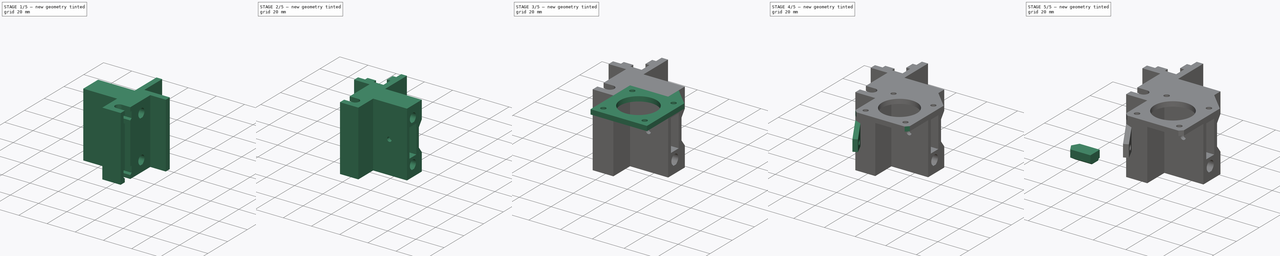
[diagram: build sequence overview — one tinted view per stage of 5, left to right]
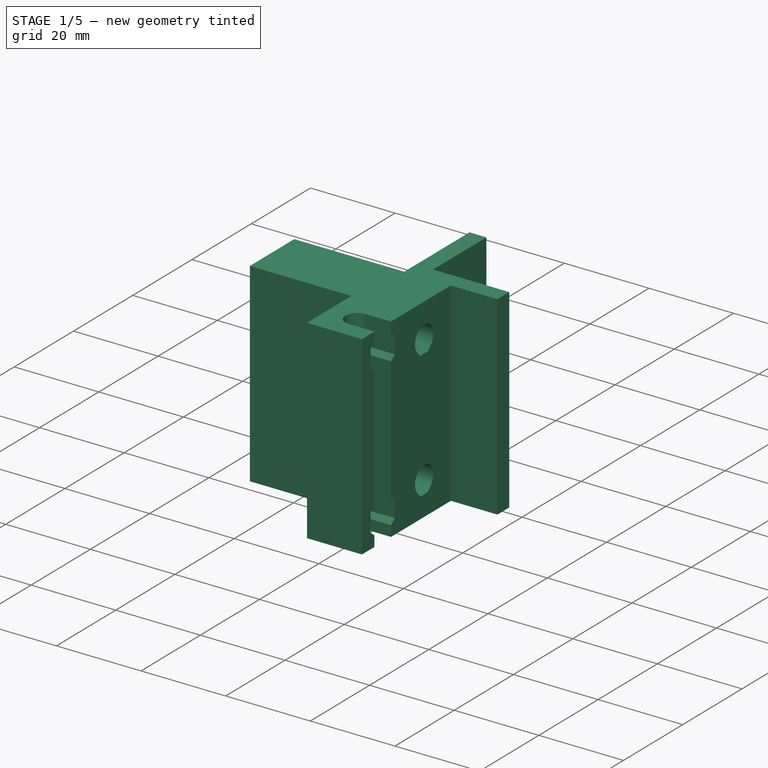
[diagram: stage 1 of 5 — iso view after this stage's code; geometry added in this stage tinted green]
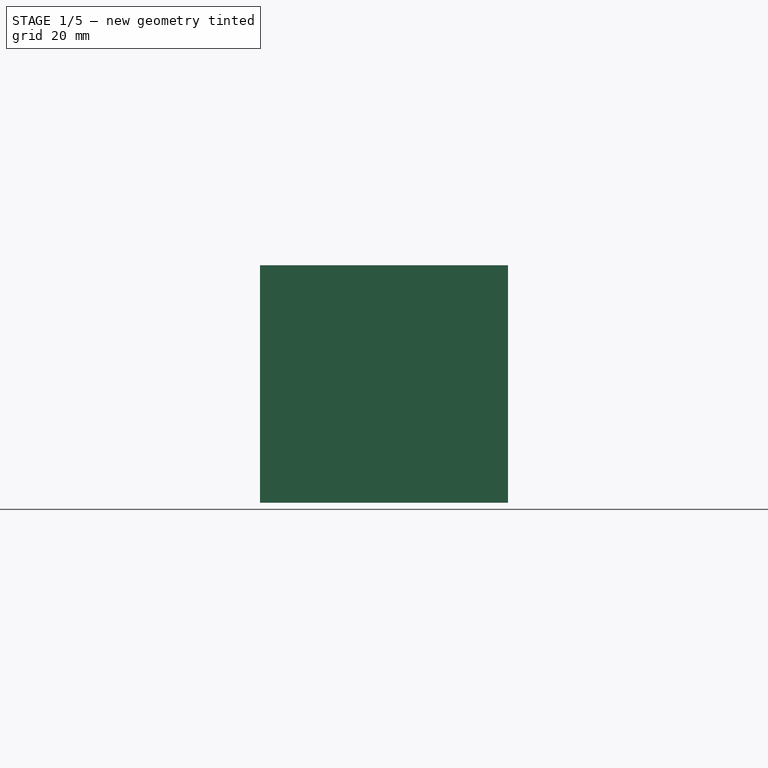
[diagram: stage 1 of 5 — front view after this stage's code; geometry added in this stage tinted green]
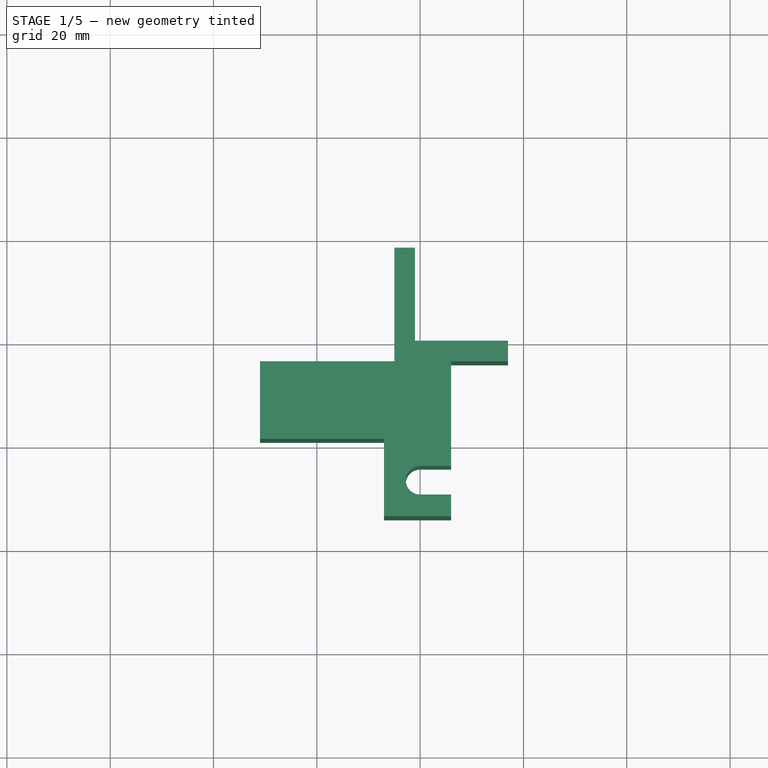
[diagram: stage 1 of 5 — top view after this stage's code; geometry added in this stage tinted green]
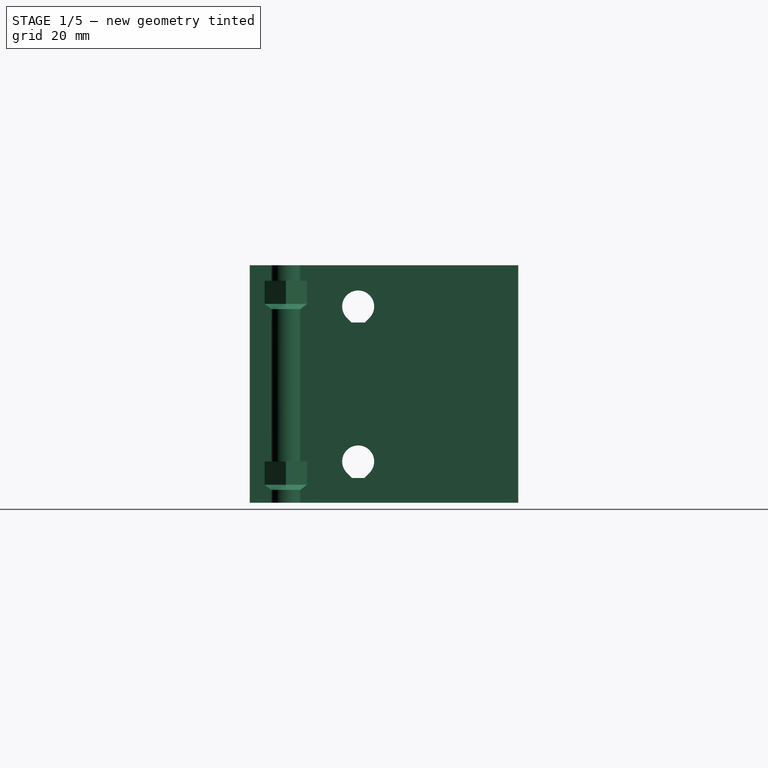
[diagram: stage 1 of 5 — right view after this stage's code; geometry added in this stage tinted green]
FCSTD DOCUMENT  (FreeCAD 0.14R3692 (Git))
Label: x-idler
License: CC-BY 3.0
LicenseURL: http://creativecommons.org/licenses/by/3.0/
objects: Sketcher::SketchObject×15, Part::Feature×13, PartDesign::Pocket×8, PartDesign::Pad×7, Part::Cut×4, Part::MultiFuse×2, Part::Loft×1, Part::Mirroring×1, Part::Prism×1, App::DocumentObjectGroup×1, Part::Chamfer×1
note: 68 computed .brp shape members not serialized (recipe doc carries the construction recipe); baked Part::Feature solids carry a one-line shape summary decoded from their .brp

FEATURE [Sketcher::SketchObject] Sketch  label="body-sketch"
  sketch-geometry (12):
    g0: LineSegment StartX=-21 StartY=18 StartZ=0 EndX=-21 EndY=0 EndZ=0
    g1: LineSegment StartX=-21 StartY=0 StartZ=0 EndX=-3 EndY=0 EndZ=0
    g2: LineSegment StartX=-3 StartY=0 StartZ=0 EndX=-3 EndY=-4 EndZ=0
    g3: LineSegment StartX=-3 StartY=-4 StartZ=0 EndX=-14 EndY=-4 EndZ=0
    g4: LineSegment StartX=-14 StartY=-4 StartZ=0 EndX=-14 EndY=-34 EndZ=0
    g5: LineSegment StartX=-14 StartY=-34 StartZ=0 EndX=-27 EndY=-34 EndZ=0
    g6: LineSegment StartX=-27 StartY=-34 StartZ=0 EndX=-27 EndY=-19 EndZ=0
    g7: LineSegment StartX=-27 StartY=-19 StartZ=0 EndX=-51 EndY=-19 EndZ=0
    g8: LineSegment StartX=-51 StartY=-19 StartZ=0 EndX=-51 EndY=-4 EndZ=0
    g9: LineSegment StartX=-51 StartY=-4 StartZ=0 EndX=-25 EndY=-4 EndZ=0
    g10: LineSegment StartX=-25 StartY=-4 StartZ=0 EndX=-25 EndY=18 EndZ=0
    g11: LineSegment StartX=-25 StartY=18 StartZ=0 EndX=-21 EndY=18 EndZ=0
  constraints (36):
    c: Coincident(g0,g1)
    c: Coincident(g1,g2)
    c: Coincident(g2,g3)
    c: Coincident(g3,g4)
    c: Coincident(g4,g5)
    c: Coincident(g5,g6)
    c: Coincident(g6,g7)
    c: Coincident(g7,g8)
    c: Coincident(g8,g9)
    c: Coincident(g9,g10)
    c: Coincident(g10,g11)
    c: Coincident(g11,g0)
    c: Vertical(g8)
    c: Vertical(g4)
    c: Vertical(g6)
    c: Vertical(g10)
    c: Vertical(g0)
    c: Vertical(g2)
    c: Horizontal(g5)
    c: Horizontal(g7)
    c: Horizontal(g9)
    c: Horizontal(g1)
    c: Horizontal(g3)
    c: Horizontal(g11)
    c: DistanceX(g1) = 18
    c: DistanceY(g0) = -18
    c: DistanceX(g11) = 4
    c: DistanceY(g2) = -4
    c: PointOnObject(g0,g-1)
    c: DistanceX(g-1,g0) = -21
    c: DistanceY(g4) = -30
    c: DistanceX(g3) = -11
    c: DistanceY(g6) = 15
    c: DistanceX(g7) = -24
    c: DistanceY(g8) = 15
    c: DistanceX(g5) = -13
FEATURE [PartDesign::Pad] Pad  label="body-pad"
  Length = 46
  Length2 = 100
  Sketch = -> Sketch
  Type = 0
FEATURE [Sketcher::SketchObject] Sketch001  label="smooth-rod-holes-sketch"
  Placement = pos=(-14,0,0) rot=(0.57735,0.57735,0.57735;2.0944rad)
  Support = -> Pad [Face5]
  sketch-geometry (8):
    g0: ArcOfCircle CenterX=-13 CenterY=38 CenterZ=0 NormalX=0 NormalY=0 NormalZ=1 Radius=3.1 StartAngle=5.49778 EndAngle=10.2102
    g1: LineSegment StartX=-10.808 StartY=35.808 StartZ=0 EndX=-11.7159 EndY=34.9 EndZ=0
    g2: LineSegment StartX=-11.7159 StartY=34.9 StartZ=0 EndX=-14.2841 EndY=34.9 EndZ=0
    g3: LineSegment StartX=-14.2841 StartY=34.9 StartZ=0 EndX=-15.192 EndY=35.808 EndZ=0
    g4: ArcOfCircle CenterX=-13 CenterY=8 CenterZ=0 NormalX=0 NormalY=0 NormalZ=1 Radius=3.1 StartAngle=5.49779 EndAngle=10.2102
    g5: LineSegment StartX=-10.808 StartY=5.80797 StartZ=0 EndX=-11.8159 EndY=4.8 EndZ=0
    g6: LineSegment StartX=-11.8159 StartY=4.8 StartZ=0 EndX=-14.184 EndY=4.8 EndZ=0
    g7: LineSegment StartX=-14.184 StartY=4.8 StartZ=0 EndX=-15.192 EndY=5.80796 EndZ=0
  constraints (26):
    c: Radius(g0) = 3.1
    c: DistanceY(g-1,g0) = 38
    c: DistanceX(g-1,g0) = -13
    c: Coincident(g1,g2)
    c: Coincident(g2,g3)
    c: Coincident(g0,g1)
    c: Coincident(g3,g0)
    c: Equal(g1,g3)
    c: Coincident(g5,g6)
    c: Coincident(g6,g7)
    c: Coincident(g4,g5)
    c: Coincident(g7,g4)
    c: Tangent(g5,g4)
    c: Tangent(g7,g4)
    c: Equal(g7,g5)
    c: Angle(g5,g7) = 1.5708
    c: Radius(g4) = 3.1
    c: DistanceY(g-1,g4) = 8
    c: DistanceX(g-1,g4) = -13
    c: Tangent(g3,g0)
    c: Tangent(g1,g0)
    c: Horizontal(g2)
    c: Angle(g1,g3) = 1.5708
    c: DistanceY(g2,g0) = 3.1
    c: DistanceY(g6,g4) = 3.2
    c: Horizontal(g6)
FEATURE [PartDesign::Pocket] Pocket  label="smooth-rod-holes-pocket"
  Length = 27
  Sketch = -> Sketch001
  Type = 1
FEATURE [Sketcher::SketchObject] Sketch002  label="threaded-rod-channel-sketch"
  Placement = pos=(0,0,46) rot=(0,0,1;0rad)
  Support = -> Pocket [Face5]
  sketch-geometry (4):
    g0: ArcOfCircle CenterX=-20 CenterY=-27 CenterZ=0 NormalX=0 NormalY=0 NormalZ=1 Radius=2.8 StartAngle=1.57079 EndAngle=4.71239
    g1: ArcOfCircle CenterX=-13 CenterY=-27 CenterZ=0 NormalX=0 NormalY=0 NormalZ=1 Radius=2.8 StartAngle=4.71239 EndAngle=7.85398
    g2: LineSegment StartX=-20 StartY=-29.8 StartZ=0 EndX=-13 EndY=-29.8 EndZ=0
    g3: LineSegment StartX=-20 StartY=-24.2 StartZ=0 EndX=-13 EndY=-24.2 EndZ=0
  constraints (14):
    c: Tangent(g0,g2)
    c: Tangent(g0,g3)
    c: Tangent(g1,g2)
    c: Tangent(g1,g3)
    c: Coincident(g0,g3)
    c: Coincident(g0,g2)
    c: Coincident(g2,g1)
    c: Coincident(g3,g1)
    c: Horizontal(g2)
    c: Equal(g0,g1)
    c: Radius(g0) = 2.8
    c: DistanceX(g2) = 7
    c: DistanceY(g-1,g0) = -27
    c: DistanceX(g-1,g0) = -20
FEATURE [PartDesign::Pocket] Pocket001  label="threaded-rod-channel-pocket"
  Length = 46
  Sketch = -> Sketch002
  Type = 0
FEATURE [Part::Feature] Fusion001  label="threaded-rod-nut-bottom"
  Placement = pos=(0,0,3.5) rot=(0,0,1;0rad)
  shape: bbox 14.73 x 8.2 x 5.5 mm, 16 faces (baked)
FEATURE [Part::Feature] Fusion002  label="threaded-rod-nut-top"
  Placement = pos=(0,0,38.5) rot=(0,0,1;0rad)
  shape: bbox 14.73 x 8.2 x 5.5 mm, 16 faces (baked)
FEATURE [Part::Cut] Cut  label="threaded-rod-nut-bottom-cut"
  Base = -> Pocket001
  Tool = -> Fusion001
FEATURE [Part::Cut] Cut001  label="threaded-rod-nut-top-cut"
  Base = -> Cut
  Tool = -> Fusion002
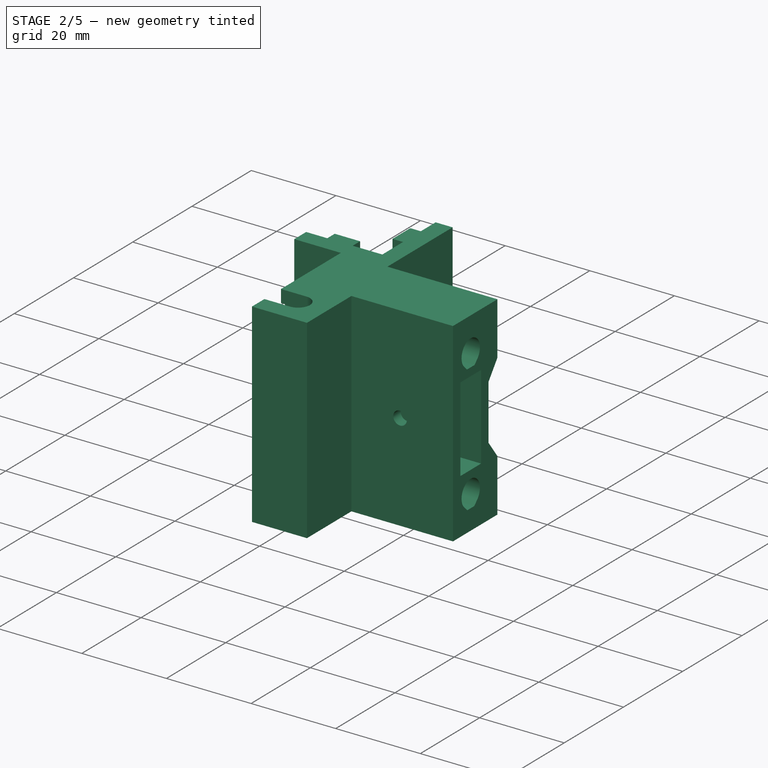
[diagram: stage 2 of 5 — iso view after this stage's code; geometry added in this stage tinted green]
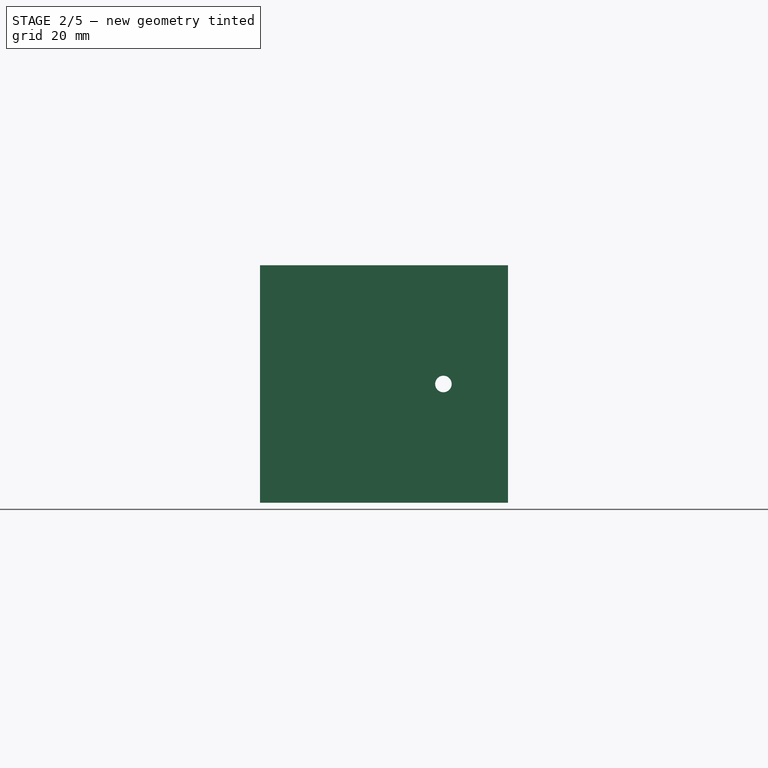
[diagram: stage 2 of 5 — front view after this stage's code; geometry added in this stage tinted green]
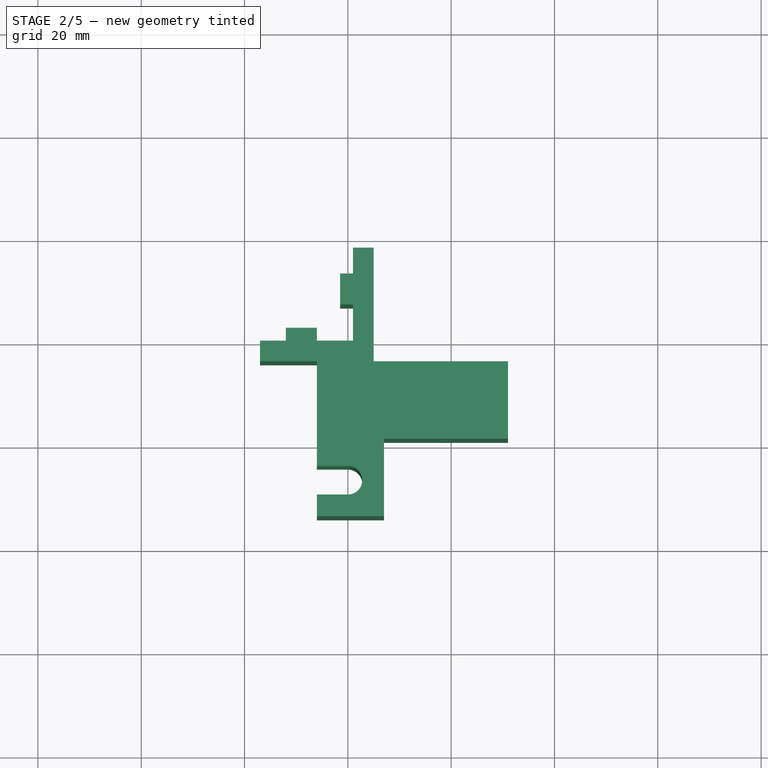
[diagram: stage 2 of 5 — top view after this stage's code; geometry added in this stage tinted green]
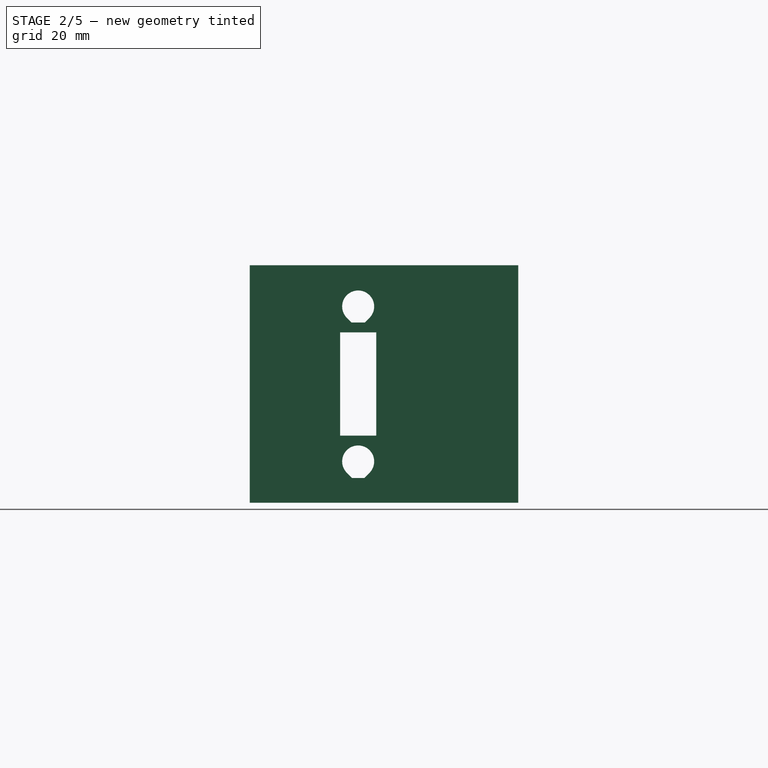
[diagram: stage 2 of 5 — right view after this stage's code; geometry added in this stage tinted green]
FEATURE [Sketcher::SketchObject] Sketch005  label="slot-guides-sketch"
  Placement = pos=(0,0,46) rot=(0,0,1;0rad)
  Support = -> Cut001 [Face5]
  sketch-geometry (8):
    g0: LineSegment StartX=-14 StartY=2.5 StartZ=0 EndX=-8 EndY=2.5 EndZ=0
    g1: LineSegment StartX=-8 StartY=2.5 StartZ=0 EndX=-8 EndY=0 EndZ=0
    g2: LineSegment StartX=-8 StartY=0 StartZ=0 EndX=-14 EndY=0 EndZ=0
    g3: LineSegment StartX=-14 StartY=0 StartZ=0 EndX=-14 EndY=2.5 EndZ=0
    g4: LineSegment StartX=-21 StartY=13 StartZ=0 EndX=-18.5 EndY=13 EndZ=0
    g5: LineSegment StartX=-18.5 StartY=13 StartZ=0 EndX=-18.5 EndY=7 EndZ=0
    g6: LineSegment StartX=-18.5 StartY=7 StartZ=0 EndX=-21 EndY=7 EndZ=0
    g7: LineSegment StartX=-21 StartY=7 StartZ=0 EndX=-21 EndY=13 EndZ=0
  constraints (24):
    c: Coincident(g0,g1)
    c: Coincident(g1,g2)
    c: Coincident(g2,g3)
    c: Coincident(g3,g0)
    c: Horizontal(g0)
    c: Horizontal(g2)
    c: Vertical(g1)
    c: Vertical(g3)
    c: Coincident(g4,g5)
    c: Coincident(g5,g6)
    c: Coincident(g6,g7)
    c: Coincident(g7,g4)
    c: Horizontal(g4)
    c: Horizontal(g6)
    c: Vertical(g5)
    c: Vertical(g7)
    c: DistanceX(g0) = 6
    c: DistanceY(g1) = -2.5
    c: Equal(g0,g5)
    c: Equal(g1,g4)
    c: DistanceX(g-1,g1) = -8
    c: PointOnObject(g1,g-1)
    c: DistanceX(g-1,g6) = -21
    c: DistanceY(g-1,g6) = 7
FEATURE [PartDesign::Pad] Pad003  label="slot-guides-pad"
  Length = 46
  Length2 = 100
  Reversed = true
  Sketch = -> Sketch005
  Type = 0
FEATURE [Part::Mirroring] Part__Mirroring  label="slot-guides (mirror)"
  Base = (3.8147e-06,-8,23)
  Normal = (1,0,5.9605e-08)
  Source = -> Pad003
FEATURE [Sketcher::SketchObject] Sketch006  label="belt-channel-sketch"
  Placement = pos=(51,0,6.07968e-06) rot=(0.57735,0.57735,0.57735;2.0944rad)
  Support = -> Part__Mirroring [Face9]
  sketch-geometry (4):
    g0: LineSegment StartX=-16.5 StartY=33 StartZ=0 EndX=-9.5 EndY=33 EndZ=0
    g1: LineSegment StartX=-9.5 StartY=33 StartZ=0 EndX=-9.5 EndY=13 EndZ=0
    g2: LineSegment StartX=-9.5 StartY=13 StartZ=0 EndX=-16.5 EndY=13 EndZ=0
    g3: LineSegment StartX=-16.5 StartY=13 StartZ=0 EndX=-16.5 EndY=33 EndZ=0
  constraints (12):
    c: Coincident(g0,g1)
    c: Coincident(g1,g2)
    c: Coincident(g2,g3)
    c: Coincident(g3,g0)
    c: Horizontal(g0)
    c: Horizontal(g2)
    c: Vertical(g1)
    c: Vertical(g3)
    c: DistanceX(g2) = -7
    c: DistanceY(g1) = -20
    c: DistanceX(g-1,g1) = -9.5
    c: DistanceY(g-1,g1) = 13
FEATURE [PartDesign::Pocket] Pocket002  label="belt-channel-pocket"
  Length = 38
  Sketch = -> Sketch006
  Type = 0
FEATURE [Sketcher::SketchObject] Sketch007  label="body-thin-cutout-sketch"
  Placement = pos=(51,0,6.07968e-06) rot=(0.57735,0.57735,0.57735;2.0944rad)
  Support = -> Pocket002 [Face9]
  sketch-geometry (4):
    g0: LineSegment StartX=-4 StartY=33.5 StartZ=0 EndX=-7 EndY=29.5 EndZ=0
    g1: LineSegment StartX=-7 StartY=29.5 StartZ=0 EndX=-7 EndY=16.5 EndZ=0
    g2: LineSegment StartX=-7 StartY=16.5 StartZ=0 EndX=-4 EndY=12.5 EndZ=0
    g3: LineSegment StartX=-4 StartY=12.5 StartZ=0 EndX=-4 EndY=33.5 EndZ=0
  constraints (12):
    c: Coincident(g0,g1)
    c: Coincident(g1,g2)
    c: Coincident(g2,g3)
    c: Coincident(g3,g0)
    c: Vertical(g3)
    c: Vertical(g1)
    c: DistanceY(g1) = -13
    c: DistanceX(g-1,g1) = -7
    c: DistanceY(g-1,g2) = 12.5
    c: DistanceX(g-1,g2) = -4
    c: Equal(g0,g2)
    c: DistanceY(g-1,g1) = 16.5
FEATURE [PartDesign::Pocket] Pocket003  label="body-thin-cutout-pocket"
  Length = 26
  Sketch = -> Sketch007
  Type = 0
FEATURE [Sketcher::SketchObject] Sketch008  label="bearing-screw-hole-sketch"
  Placement = pos=(0,-7,0) rot=(0,0.707107,0.707107;3.14159rad)
  Support = -> Pocket003 [Face33]
  sketch-geometry (1):
    g0: Circle CenterX=-38.5 CenterY=23 CenterZ=0 NormalX=0 NormalY=0 NormalZ=1 Radius=1.6
  constraints (3):
    c: Radius(g0) = 1.6
    c: DistanceX(g-1,g0) = -38.5
    c: DistanceY(g-1,g0) = 23
FEATURE [PartDesign::Pocket] Pocket004  label="bearing-screw-hole-pocket"
  Length = 5
  Sketch = -> Sketch008
  Type = 1
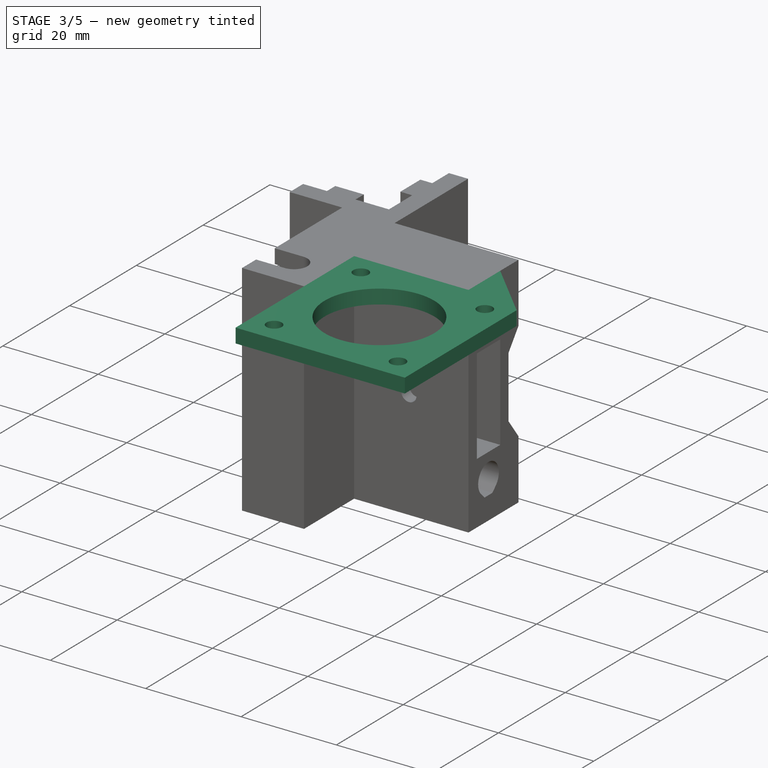
[diagram: stage 3 of 5 — iso view after this stage's code; geometry added in this stage tinted green]
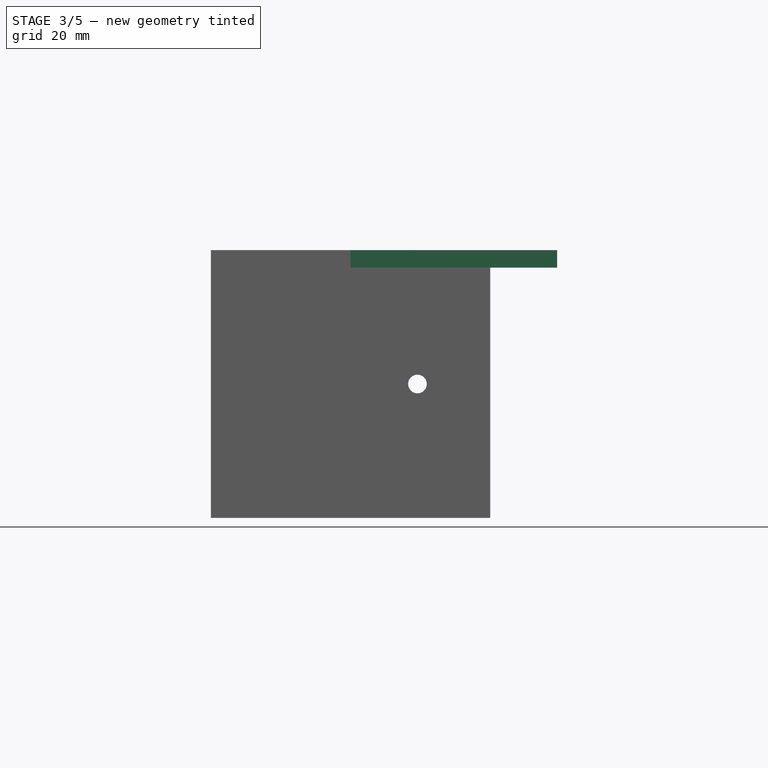
[diagram: stage 3 of 5 — front view after this stage's code; geometry added in this stage tinted green]
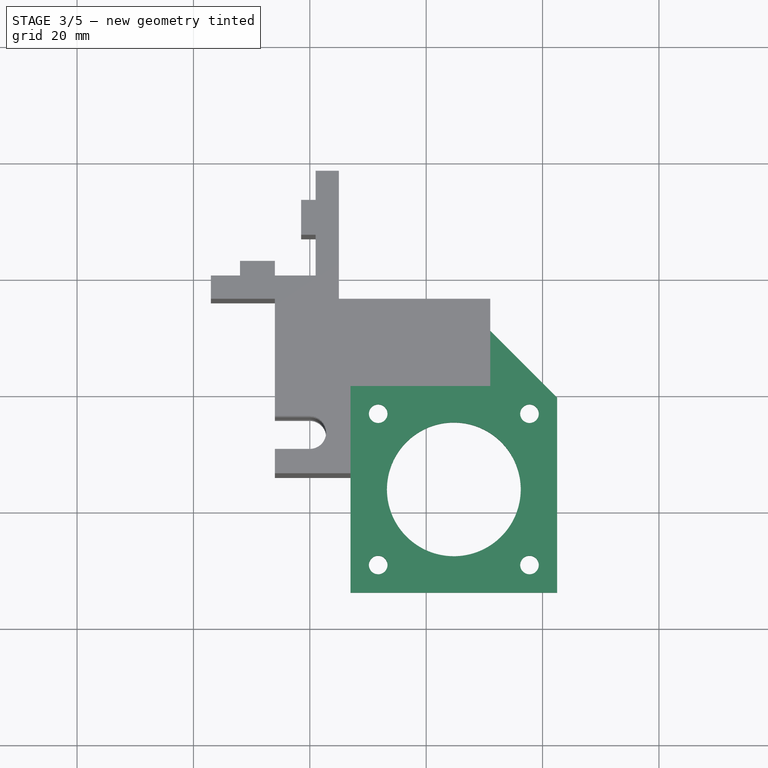
[diagram: stage 3 of 5 — top view after this stage's code; geometry added in this stage tinted green]
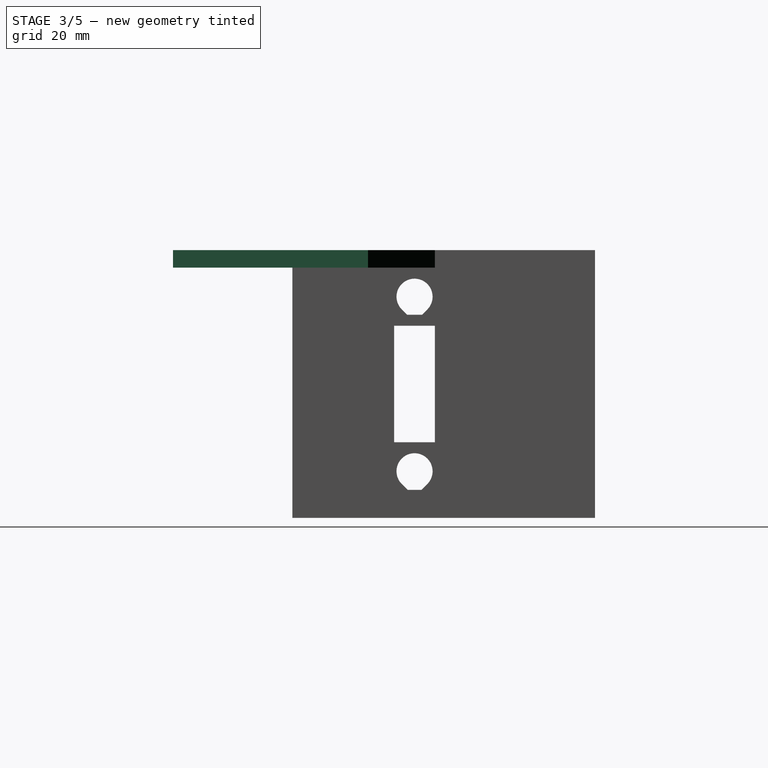
[diagram: stage 3 of 5 — right view after this stage's code; geometry added in this stage tinted green]
FEATURE [Part::Feature] Pad004001  label="smooth-rod-nut-top"
  Placement = pos=(38.5,-13,38) rot=(-1,0,0;1.5708rad)
  shape: bbox 7 x 9.5 x 6.062 mm, 10 faces (baked)
FEATURE [Part::Feature] Pad004001001  label="smooth-rod-nut-bottom"
  Placement = pos=(38.5,-13,8) rot=(-1,0,0;1.5708rad)
  shape: bbox 7 x 9.5 x 6.062 mm, 10 faces (baked)
FEATURE [Part::Cut] Cut002  label="smooth-rod-nut-top-cut"
  Base = -> Pocket004
  Tool = -> Pad004001
FEATURE [Part::Cut] Cut003  label="smooth-rod-nut-bottom-cut"
  Base = -> Cut002
  Tool = -> Pad004001001
FEATURE [Sketcher::SketchObject] Sketch010  label="motor-e-holder-sketch"
  Placement = pos=(-5.48363e-06,0,46) rot=(0,0,1;0rad)
  Support = -> Cut003 [Face5]
  sketch-geometry (5):
    g0: LineSegment StartX=62.5 StartY=-21 StartZ=0 EndX=62.5 EndY=-54.5 EndZ=0
    g1: LineSegment StartX=62.5 StartY=-54.5 StartZ=0 EndX=27 EndY=-54.5 EndZ=0
    g2: LineSegment StartX=27 StartY=-54.5 StartZ=0 EndX=27 EndY=-9 EndZ=0
    g3: LineSegment StartX=62.5 StartY=-21 StartZ=0 EndX=50.5 EndY=-9 EndZ=0
    g4: LineSegment StartX=50.5 StartY=-9 StartZ=0 EndX=27 EndY=-9 EndZ=0
  constraints (15):
    c: Coincident(g0,g1)
    c: Coincident(g1,g2)
    c: Horizontal(g1)
    c: Vertical(g0)
    c: Vertical(g2)
    c: DistanceX(g1) = -35.5
    c: Coincident(g3,g4)
    c: Horizontal(g4)
    c: DistanceX(g-1,g2) = 27
    c: Coincident(g2,g4)
    c: Angle(g4,g3) = 2.35619
    c: DistanceY(g0) = -33.5
    c: DistanceY(g2) = 45.5
    c: DistanceY(g-1,g2) = -9
    c: Coincident(g0,g3)
FEATURE [PartDesign::Pad] Pad004001002  label="motor-e-holder-pad"
  Length = 3
  Length2 = 100
  Reversed = true
  Sketch = -> Sketch010
  Type = 0
FEATURE [Sketcher::SketchObject] Sketch011  label="motor-e-shaft-cutout-sketch"
  Placement = pos=(-5.48363e-06,0,46) rot=(0,0,1;0rad)
  Support = -> Pad004001002 [Face74]
  sketch-geometry (1):
    g0: Circle CenterX=44.75 CenterY=-36.75 CenterZ=0 NormalX=0 NormalY=0 NormalZ=1 Radius=11.5
  constraints (3):
    c: Radius(g0) = 11.5
    c: DistanceY(g-1,g0) = -36.75
    c: DistanceX(g-1,g0) = 44.75
FEATURE [PartDesign::Pocket] Pocket005  label="motor-e-shaft-cutout-pocket"
  Length = 3
  Sketch = -> Sketch011
  Type = 0
FEATURE [Sketcher::SketchObject] Sketch012  label="motor-e-screw-holes-sketch"
  Placement = pos=(-5.48363e-06,0,46) rot=(0,0,1;0rad)
  Support = -> Pocket005 [Face74]
  sketch-geometry (9):
    g0: Circle [constr] CenterX=44.75 CenterY=-36.75 CenterZ=0 NormalX=0 NormalY=0 NormalZ=1 Radius=18.3848
    g1: LineSegment [constr] StartX=31.75 StartY=-23.75 StartZ=0 EndX=57.75 EndY=-23.75 EndZ=0
    g2: LineSegment [constr] StartX=57.75 StartY=-23.75 StartZ=0 EndX=57.75 EndY=-49.75 EndZ=0
    g3: LineSegment [constr] StartX=57.75 StartY=-49.75 StartZ=0 EndX=31.75 EndY=-49.75 EndZ=0
    g4: LineSegment [constr] StartX=31.75 StartY=-49.75 StartZ=0 EndX=31.75 EndY=-23.75 EndZ=0
    g5: Circle CenterX=31.75 CenterY=-23.75 CenterZ=0 NormalX=0 NormalY=0 NormalZ=1 Radius=1.6
    g6: Circle CenterX=57.75 CenterY=-23.75 CenterZ=0 NormalX=0 NormalY=0 NormalZ=1 Radius=1.6
    g7: Circle CenterX=31.75 CenterY=-49.75 CenterZ=0 NormalX=0 NormalY=0 NormalZ=1 Radius=1.6
    g8: Circle CenterX=57.75 CenterY=-49.75 CenterZ=0 NormalX=0 NormalY=0 NormalZ=1 Radius=1.6
  constraints (23):
    c: Coincident(g1,g2)
    c: Coincident(g2,g3)
    c: Coincident(g3,g4)
    c: Coincident(g4,g1)
    c: Horizontal(g1)
    c: Horizontal(g3)
    c: Vertical(g2)
    c: Vertical(g4)
    c: DistanceX(g3) = -26
    c: Equal(g3,g2)
    c: PointOnObject(g1,g0)
    c: PointOnObject(g1,g0)
    c: PointOnObject(g2,g0)
    c: DistanceX(g-1,g0) = 44.75
    c: DistanceY(g-1,g0) = -36.75
    c: Radius(g5) = 1.6
    c: Coincident(g5,g1)
    c: Coincident(g8,g2)
    c: Coincident(g6,g1)
    c: Coincident(g3,g7)
    c: Equal(g6,g5)
    c: Equal(g5,g7)
    c: Equal(g7,g8)
FEATURE [PartDesign::Pocket] Pocket006  label="motor-e-screw-holes-pocket"
  Length = 3
  Sketch = -> Sketch012
  Type = 0
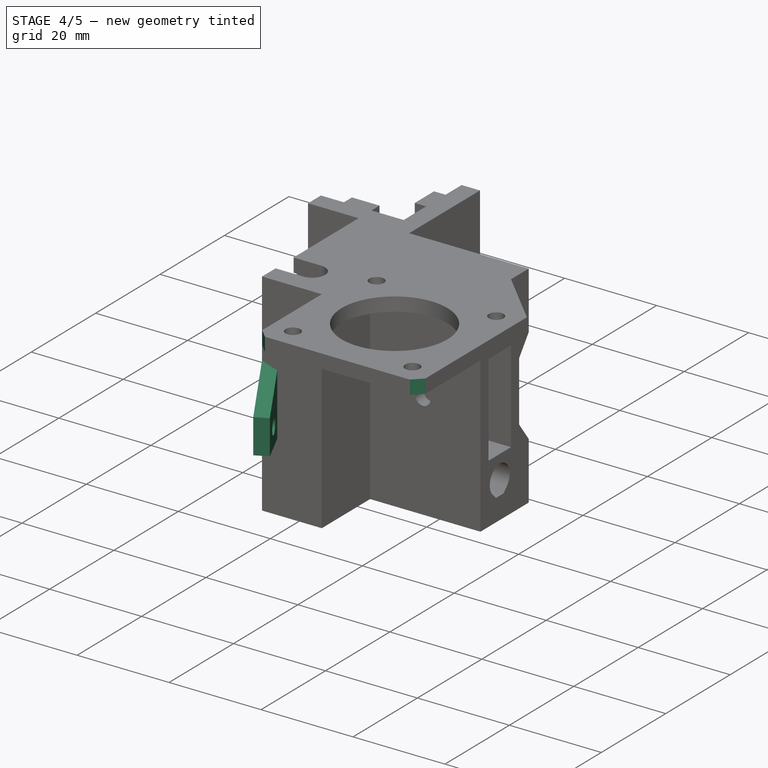
[diagram: stage 4 of 5 — iso view after this stage's code; geometry added in this stage tinted green]
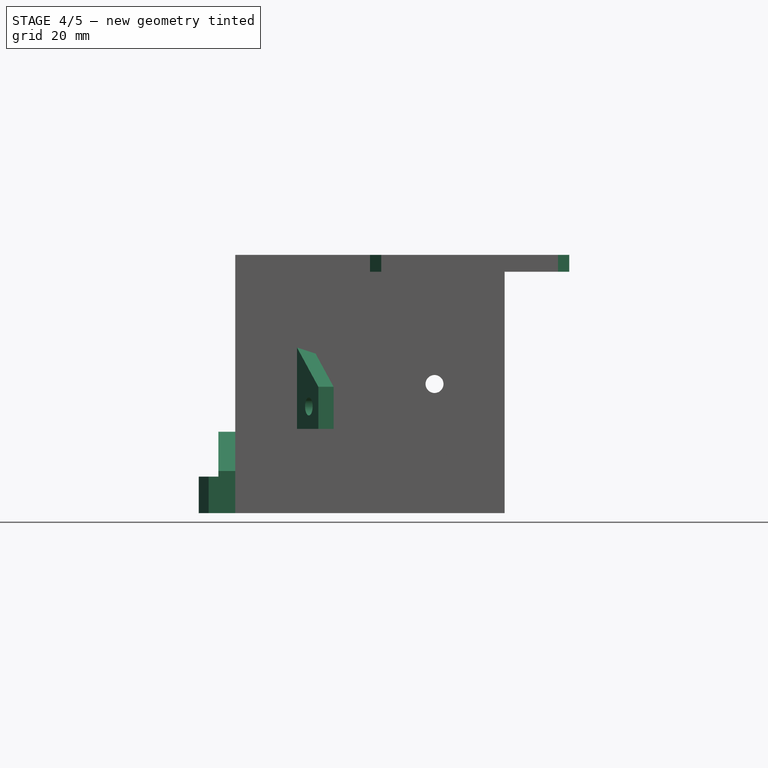
[diagram: stage 4 of 5 — front view after this stage's code; geometry added in this stage tinted green]
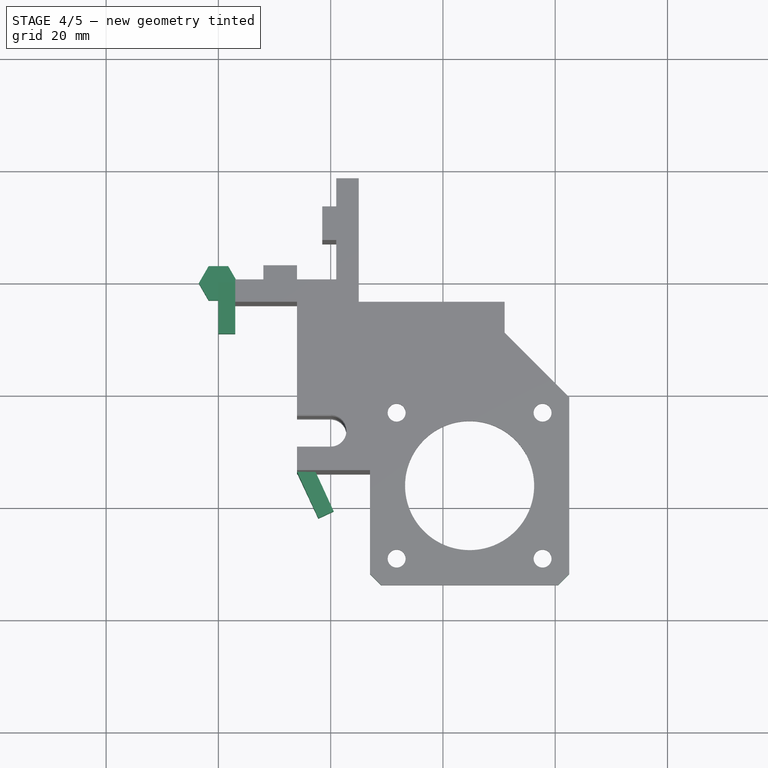
[diagram: stage 4 of 5 — top view after this stage's code; geometry added in this stage tinted green]
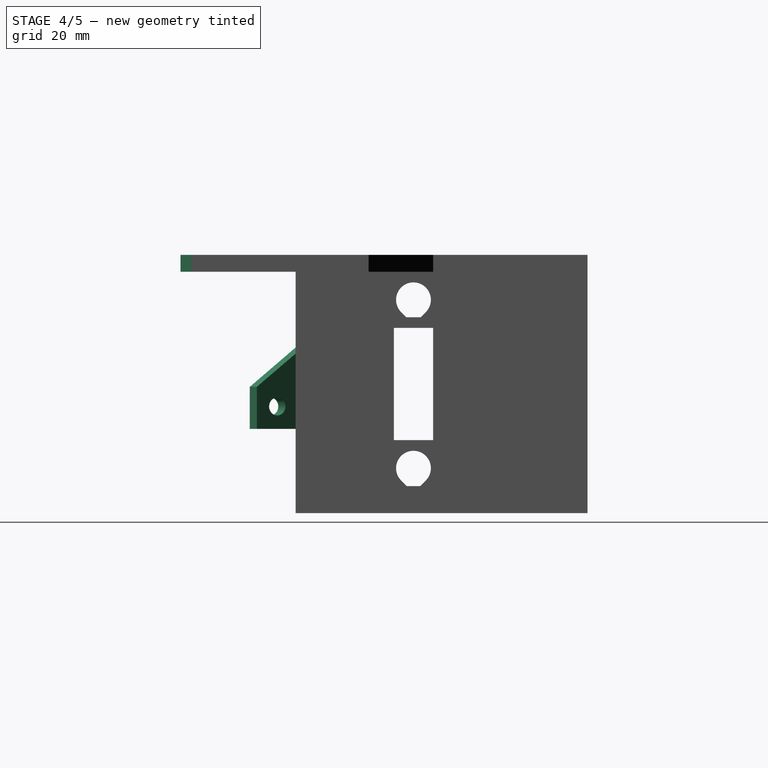
[diagram: stage 4 of 5 — right view after this stage's code; geometry added in this stage tinted green]
FEATURE [Part::Prism] Prism  label="smooth-rod-nut-prism"
  Circumradius = 3.5
  Height = 6.5
  Polygon = 6
FEATURE [Sketcher::SketchObject] Sketch013  label="fan-holder-sketch"
  Placement = pos=(0,0,0) rot=(0.57735,-0.57735,-0.57735;2.0944rad)
  sketch-geometry (4):
    g0: LineSegment StartX=9 StartY=0 StartZ=0 EndX=9 EndY=7.5 EndZ=0
    g1: LineSegment StartX=9 StartY=7.5 StartZ=0 EndX=0 EndY=14.5 EndZ=0
    g2: LineSegment StartX=0 StartY=14.5 StartZ=0 EndX=0 EndY=0 EndZ=0
    g3: LineSegment StartX=0 StartY=0 StartZ=0 EndX=9 EndY=0 EndZ=0
  constraints (11):
    c: Coincident(g0,g1)
    c: Coincident(g1,g2)
    c: Coincident(g2,g3)
    c: Coincident(g3,g0)
    c: Horizontal(g3)
    c: Vertical(g0)
    c: Vertical(g2)
    c: Coincident(g2,g-1)
    c: DistanceX(g3) = 9
    c: DistanceY(g2) = -14.5
    c: DistanceY(g0) = 7.5
FEATURE [PartDesign::Pad] Pad004001003  label="fan-holder-pad"
  Length = 3
  Length2 = 100
  Placement = pos=(0,0,0) rot=(0.57735,-0.57735,-0.57735;2.0944rad)
  Reversed = true
  Sketch = -> Sketch013
  Type = 0
FEATURE [Sketcher::SketchObject] Sketch014  label="fan-holder-screw-hole-sketch"
  Placement = pos=(0,0,0) rot=(-0.57735,0.57735,0.57735;4.18879rad)
  Support = -> Pad004001003 [Face5]
  sketch-geometry (1):
    g0: Circle CenterX=5 CenterY=4 CenterZ=0 NormalX=0 NormalY=0 NormalZ=1 Radius=1.6
  constraints (3):
    c: Radius(g0) = 1.6
    c: DistanceY(g-1,g0) = 4
    c: DistanceX(g-1,g0) = 5
FEATURE [PartDesign::Pocket] Pocket007  label="fan-holder-screw-hole-pocket"
  Length = 3
  Placement = pos=(0,0,0) rot=(0.57735,-0.57735,-0.57735;2.0944rad)
  Sketch = -> Sketch014
  Type = 0
FEATURE [Part::Feature] Pocket007001  label="fan-holder"
  Placement = pos=(14,-34,15) rot=(0,0,1;0.436332rad)
  shape: bbox 6.522 x 9.425 x 14.5 mm, 7 faces (baked)
FEATURE [Part::Feature] Part__Feature  label="nema14-stepper-motor-e-right"
  Placement = pos=(44.75,-36.75,43) rot=(0,0,-1;1.5708rad)
  shape: bbox 35.05 x 36.32 x 61.75 mm, 100 faces (baked)
FEATURE [Part::Feature] Part__Feature001  label="extrusion-p20n6b-300-right"
  Placement = pos=(11,10,-233) rot=(0,0,1;0rad)
  shape: bbox 20 x 20 x 300 mm, 154 faces (baked)
FEATURE [Part::Feature] Part__Feature002  label="smooth-rod-06-300-x-bottom"
  Placement = pos=(60,-13,8) rot=(0.57735,0.57735,-0.57735;4.18879rad)
  shape: bbox 300 x 6 x 6 mm, 3 faces (baked)
FEATURE [Part::Feature] Part__Feature003  label="smooth-rod-06-300-x-top"
  Placement = pos=(60,-13,38) rot=(0.57735,0.57735,-0.57735;4.18879rad)
  shape: bbox 300 x 6 x 6 mm, 3 faces (baked)
FEATURE [Part::Feature] Part__Feature004  label="threaded-rod-05-230-z-right"
  Placement = pos=(20,-27,-162.5) rot=(0,0,1;0rad)
  shape: bbox 5 x 5 x 230 mm, 3 faces (baked)
FEATURE [App::DocumentObjectGroup] Grupo  label="aux"
  Group = -> [Part__Feature001,Part__Feature002,Part__Feature003,Part__Feature004,Part__Feature]
FEATURE [Part::Chamfer] Chamfer  label="motor-e-holder-chamfer"
  Base = -> Pocket006
  Edges = 2 edges r=2: [Edge209,Edge267]
FEATURE [Part::MultiFuse] Fusion003002  label="body-fan-holder-fusion"
  Shapes = -> [Chamfer,Pocket007001]
FEATURE [Part::Feature] Fusion003002002  label="x-idler"
  shape: bbox 59.5 x 72.5 x 46 mm, 107 faces (baked)
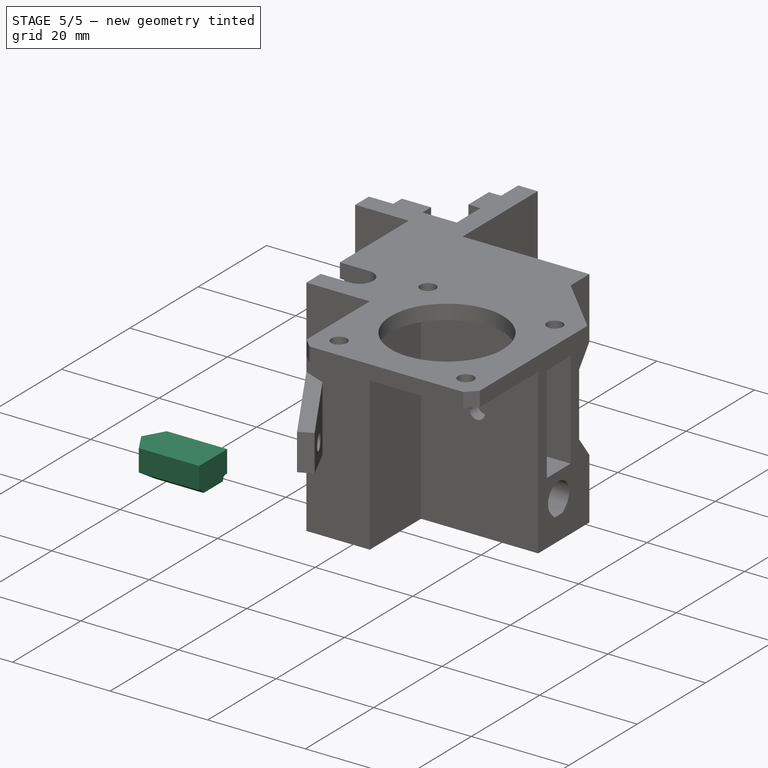
[diagram: stage 5 of 5 — iso view after this stage's code; geometry added in this stage tinted green]
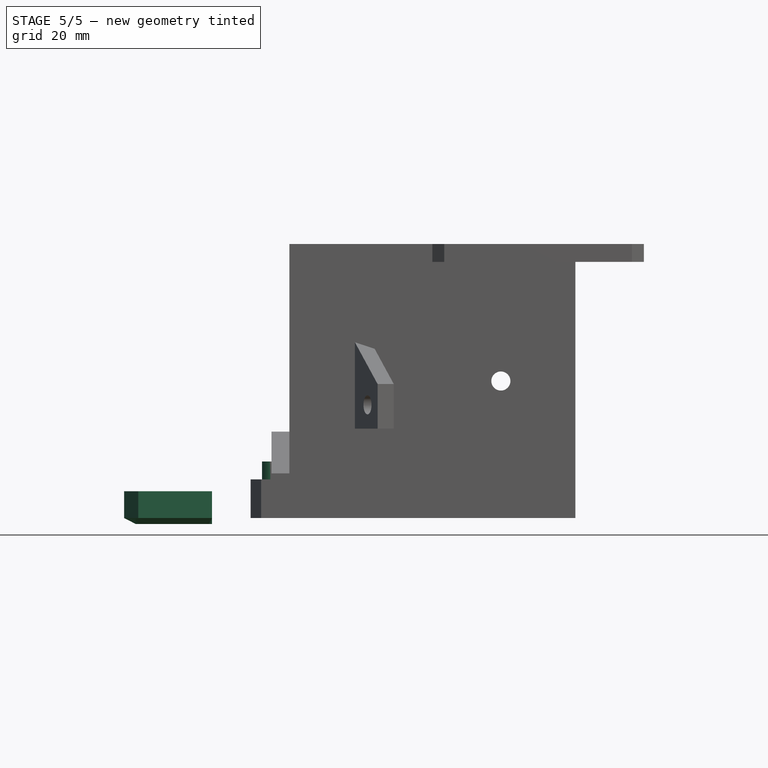
[diagram: stage 5 of 5 — front view after this stage's code; geometry added in this stage tinted green]
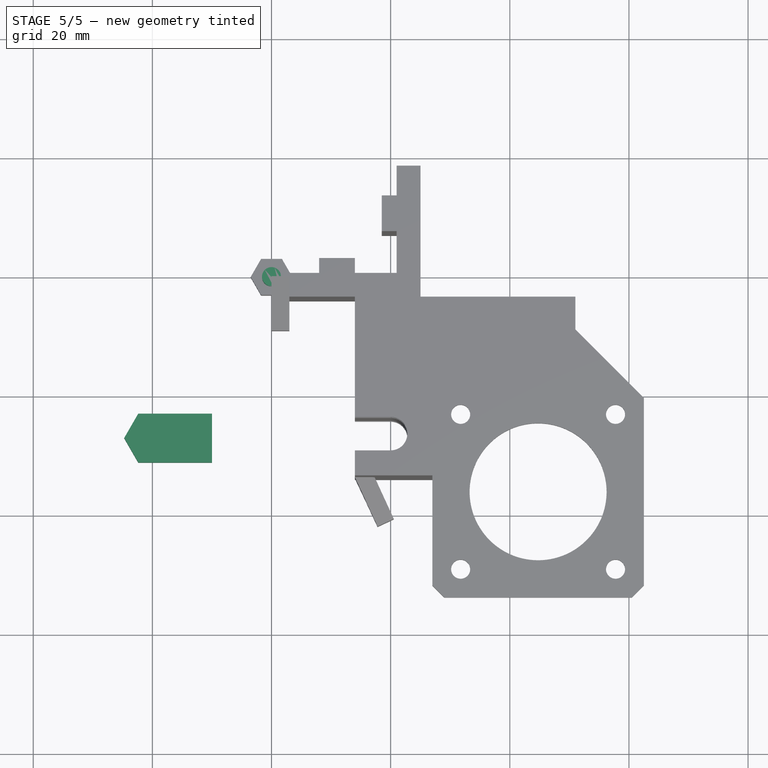
[diagram: stage 5 of 5 — top view after this stage's code; geometry added in this stage tinted green]
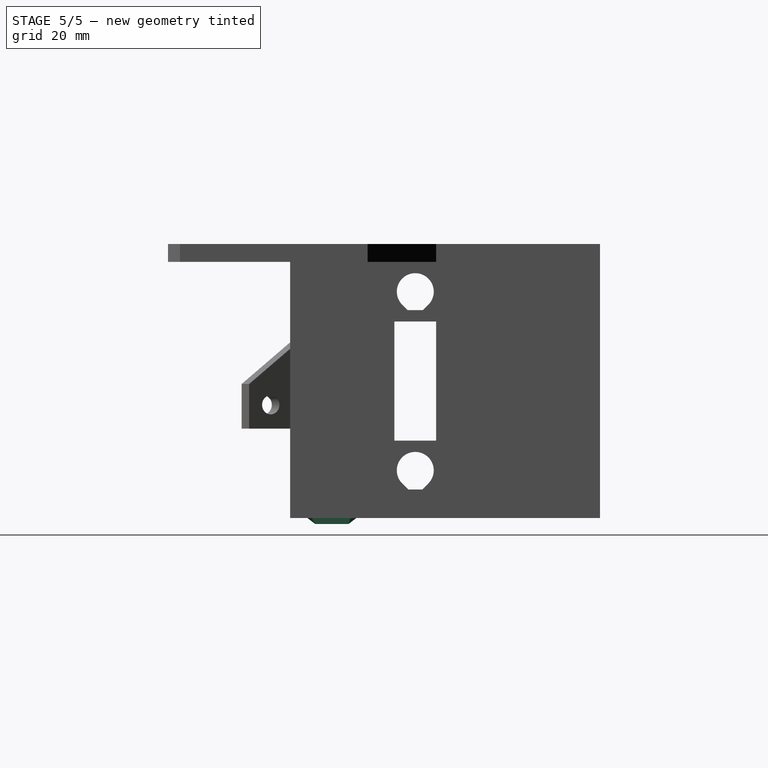
[diagram: stage 5 of 5 — right view after this stage's code; geometry added in this stage tinted green]
FEATURE [Sketcher::SketchObject] Sketch003  label="threaded-rod-nut-sketch"
  sketch-geometry (6):
    g0: LineSegment StartX=-10 StartY=-22.9 StartZ=0 EndX=-22.3671 EndY=-22.9 EndZ=0
    g1: LineSegment StartX=-22.3671 StartY=-22.9 StartZ=0 EndX=-24.7343 EndY=-27 EndZ=0
    g2: LineSegment StartX=-24.7343 StartY=-27 StartZ=0 EndX=-22.3671 EndY=-31.1 EndZ=0
    g3: LineSegment StartX=-22.3671 StartY=-31.1 StartZ=0 EndX=-10 EndY=-31.1 EndZ=0
    g4: LineSegment StartX=-10 StartY=-31.1 StartZ=0 EndX=-10 EndY=-22.9 EndZ=0
    g5: Circle [constr] CenterX=-20 CenterY=-27 CenterZ=0 NormalX=0 NormalY=0 NormalZ=1 Radius=4.1
  constraints (18):
    c: Coincident(g0,g1)
    c: Coincident(g1,g2)
    c: Coincident(g2,g3)
    c: Coincident(g3,g4)
    c: Coincident(g4,g0)
    c: Horizontal(g3)
    c: Horizontal(g0)
    c: Vertical(g4)
    c: Angle(g2,g1) = 2.0944
    c: Radius(g5) = 4.1
    c: DistanceY(g4) = 8.2
    c: Equal(g1,g2)
    c: Tangent(g1,g5)
    c: Tangent(g2,g5)
    c: DistanceX(g5,g3) = 10
    c: DistanceY(g5,g3) = -4.1
    c: DistanceX(g-1,g5) = -20
    c: DistanceY(g-1,g5) = -27
FEATURE [PartDesign::Pad] Pad001  label="threaded-rod-nut-pad"
  Length = 4.5
  Length2 = 100
  Sketch = -> Sketch003
  Type = 0
FEATURE [Sketcher::SketchObject] Sketch004  label="threaded-rod-nut-overhang-sketch"
  Placement = pos=(0,0,0) rot=(1,0,0;3.14159rad)
  Support = -> Pad001 [Face6]
  sketch-geometry (4):
    g0: ArcOfCircle CenterX=-20 CenterY=27 CenterZ=0 NormalX=0 NormalY=0 NormalZ=1 Radius=2.8 StartAngle=1.5708 EndAngle=4.71238
    g1: LineSegment StartX=-20 StartY=24.2 StartZ=0 EndX=-10 EndY=24.2 EndZ=0
    g2: LineSegment StartX=-20 StartY=29.8 StartZ=0 EndX=-10 EndY=29.8 EndZ=0
    g3: LineSegment StartX=-10 StartY=29.8 StartZ=0 EndX=-10 EndY=24.2 EndZ=0
  constraints (13):
    c: Tangent(g0,g1)
    c: Tangent(g0,g2)
    c: Coincident(g0,g2)
    c: Coincident(g0,g1)
    c: Horizontal(g1)
    c: Horizontal(g2)
    c: Coincident(g1,g3)
    c: Coincident(g2,g3)
    c: Vertical(g3)
    c: Radius(g0) = 2.8
    c: DistanceX(g1) = 10
    c: DistanceY(g-1,g0) = 27
    c: DistanceX(g-1,g0) = -20
FEATURE [PartDesign::Pad] Pad002  label="threaded-rod-nut-overhang-pad"
  Length = 1
  Length2 = 100
  Sketch = -> Sketch004
  Type = 0
FEATURE [Part::Feature] Pad001_cs  label="threaded-rod-nut-section"
  shape: bbox 14.73 x 8.2 x 2e-07 mm, 0 faces, 0 solids (baked)
FEATURE [Part::Feature] Pad002_cs  label="threaded-rod-nut-overhang-section"
  shape: bbox 12.8 x 5.6 x 2e-07 mm, 0 faces, 0 solids (baked)
FEATURE [Part::Loft] Loft  label="threaded-rod-nut-loft"
  Closed = false
  Ruled = false
  Sections = -> [Pad001_cs,Pad002_cs]
  Solid = true
FEATURE [Part::MultiFuse] Fusion  label="threaded-rod-nut-fusion"
  Shapes = -> [Loft,Pad001]
FEATURE [Sketcher::SketchObject] Sketch009  label="smooth-rod-screw-sketch"
  Placement = pos=(0,0,6.5) rot=(0,0,1;0rad)
  Support = -> Prism [Face8]
  sketch-geometry (1):
    g0: Circle CenterX=0 CenterY=0 CenterZ=0 NormalX=0 NormalY=0 NormalZ=1 Radius=1.6
  constraints (2):
    c: Coincident(g0,g-1)
    c: Radius(g0) = 1.6
FEATURE [PartDesign::Pad] Pad004  label="smooth-rod-screw-pad"
  Length = 3
  Length2 = 100
  Sketch = -> Sketch009
  Type = 0
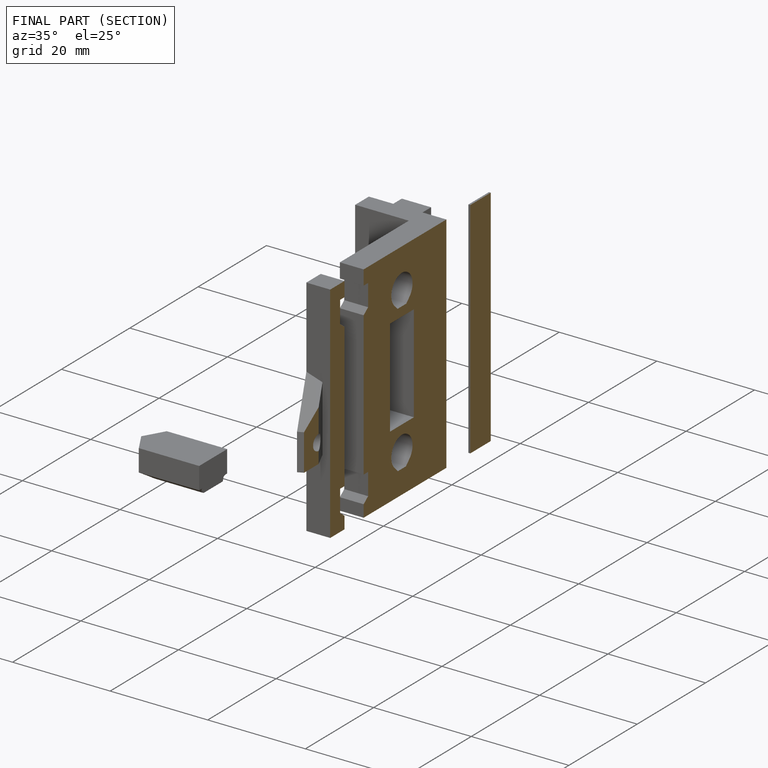
[diagram: finished part — half-section view (interior)]
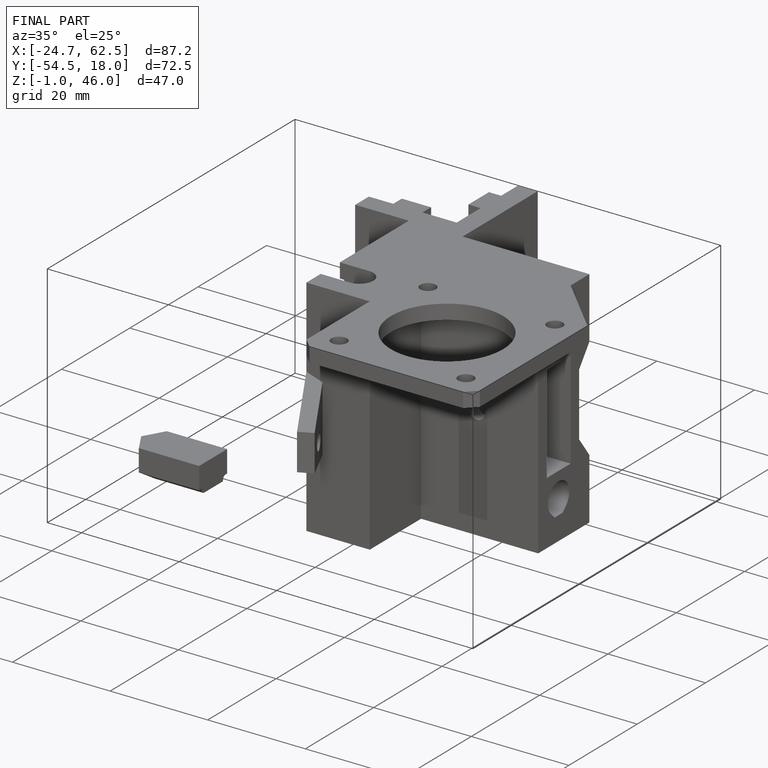
[diagram: finished part — iso view with bounding-box wireframe]
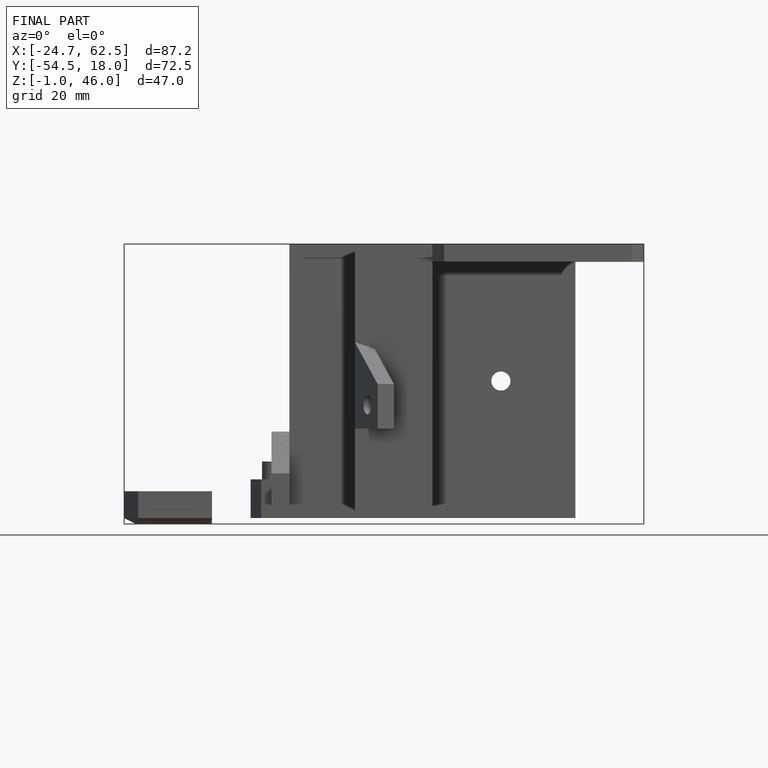
[diagram: finished part — front view with bounding-box wireframe]
